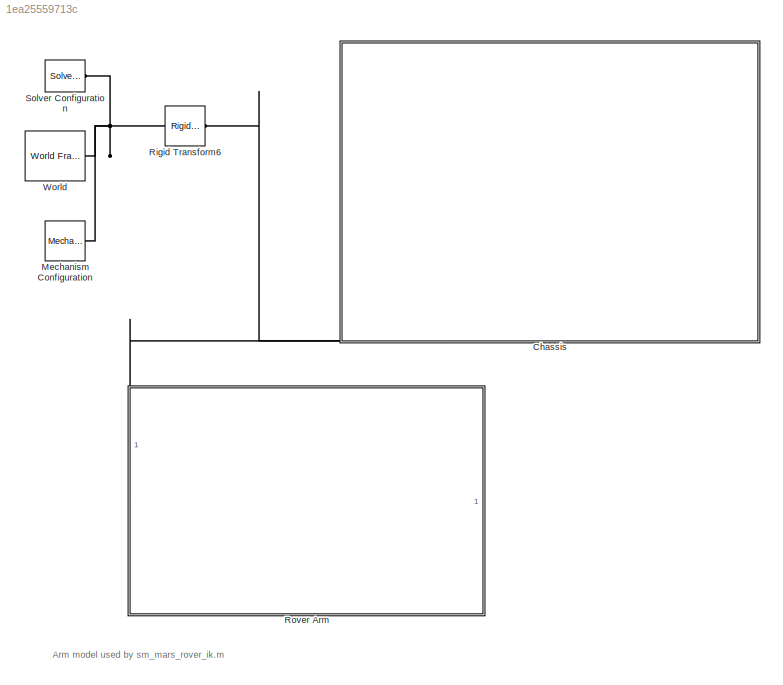
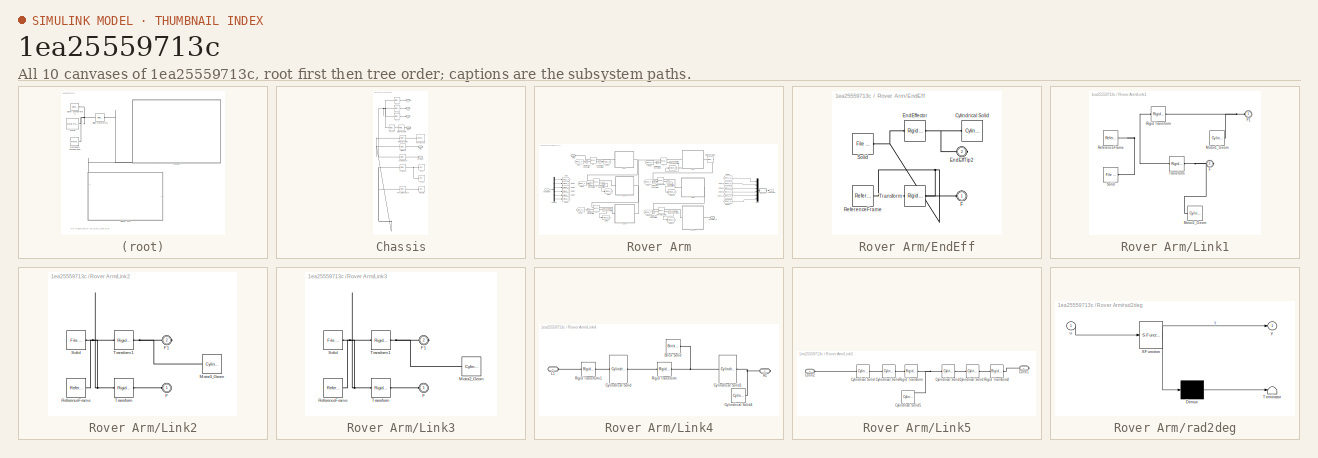
[diagram: thumbnail index - all 10 canvases of the model, root first then tree order]
MODEL slx_1ea25559713c
KIND model
CONFIG AbsTol = 1e-3
CONFIG EnableMultiTasking = on
CONFIG FixedStep = 1e-4
CONFIG MaxStep = 0.1
CONFIG MinStep = auto
CONFIG RelTol = 1e-3
CONFIG SampleTimeConstraint = Unconstrained
CONFIG SolverName = ode15s
CONFIG StartTime = 0.0
CONFIG StopTime = 83
WORKSPACE source: MATLAB code (in-file)
WORKSPACE currentDir = pwd
WORKSPACE code: if contains(pwd,'sm_mars_rover_data')
WORKSPACE code: run( 'rover_params') ;
WORKSPACE code: run('rover_arm_params');
WORKSPACE code: run('rover_camera_params') ;
WORKSPACE code: else
WORKSPACE code: run(['sm_mars_rover_data',filesep,'rover_params']) ;
WORKSPACE code: run(['sm_mars_rover_data',filesep,'rover_arm_params']);
WORKSPACE code: run(['sm_mars_rover_data',filesep,'rover_camera_params']) ;
WORKSPACE code: end
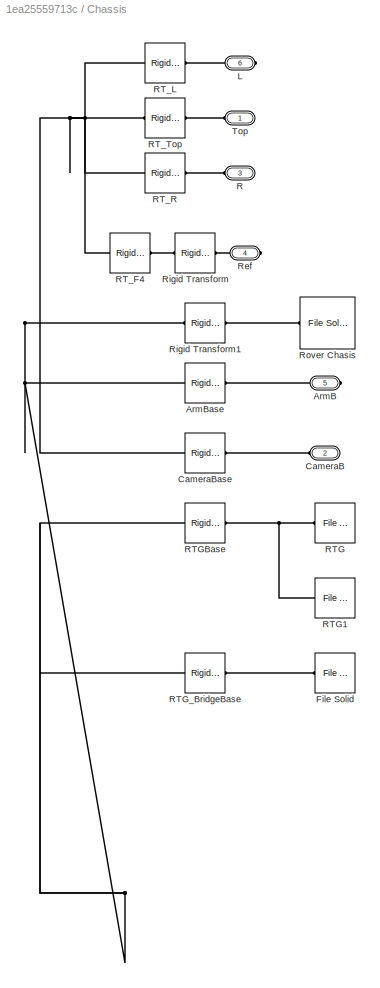
BLOCK [SubSystem] Chassis
  PortSchema = {"entries":[{"content":{"sides":[{"content":{"connectorIds":["LConn1"]},"type":"ConnectorPlacement.EquallySpacedRectSide","uuid":"0997d4f9-c5a6-4a62-ba5e-c58d48ce04e3"},{"content":{"connectorIds":[],"side":"RIGHT"},"type":"ConnectorPlacement.EquallySpacedRectSide","uuid":"5cc65ecf-81a6-4fc9-b54f-1f4b62f39cde"},{"content":{"connectorIds":["LConn2","LConn3"],"side":"TOP"},"type":"ConnectorPlacement....<+424ch>
  Ports = [0, 0, 0, 0, 0, 3, 3]
  RequestExecContextInheritance = off
BLOCK [PMIOPort] Chassis/ArmB
  Port = 5
  Side = Right
BLOCK [Reference] Chassis/ArmBase  REF=sm_lib/Frames and
Transforms/Rigid
Transform
  Ports = [0, 0, 0, 0, 0, 1, 1]
  SourceBlock = sm_lib/Frames and\nTransforms/Rigid\nTransform
  SourceProductBaseCode = MS
  SourceType = Rigid\nTransform
BLOCK [PMIOPort] Chassis/CameraB
  Port = 2
  Side = Left
BLOCK [Reference] Chassis/CameraBase  REF=sm_lib/Frames and
Transforms/Rigid
Transform
  Ports = [0, 0, 0, 0, 0, 1, 1]
  SourceBlock = sm_lib/Frames and\nTransforms/Rigid\nTransform
  SourceProductBaseCode = MS
  SourceType = Rigid\nTransform
BLOCK [Reference] Chassis/File Solid  REF=sm_lib/Body Elements/File Solid
  NameLocation = top
  Ports = [0, 0, 0, 0, 0, 0, 1]
  SourceBlock = sm_lib/Body Elements/File Solid
  SourceProductBaseCode = MS
  SourceType = File Solid
BLOCK [PMIOPort] Chassis/L
  Port = 6
  Side = Right
BLOCK [PMIOPort] Chassis/R
  Port = 3
  Side = Left
BLOCK [Reference] Chassis/RTG  REF=sm_lib/Body Elements/File Solid
  Ports = [0, 0, 0, 0, 0, 0, 1]
  SourceBlock = sm_lib/Body Elements/File Solid
  SourceProductBaseCode = MS
  SourceType = File Solid
BLOCK [Reference] Chassis/RTG1  REF=sm_lib/Body Elements/File Solid
  Ports = [0, 0, 0, 0, 0, 0, 1]
  SourceBlock = sm_lib/Body Elements/File Solid
  SourceProductBaseCode = MS
  SourceType = File Solid
BLOCK [Reference] Chassis/RTGBase  REF=sm_lib/Frames and
Transforms/Rigid
Transform
  Ports = [0, 0, 0, 0, 0, 1, 1]
  SourceBlock = sm_lib/Frames and\nTransforms/Rigid\nTransform
  SourceProductBaseCode = MS
  SourceType = Rigid\nTransform
BLOCK [Reference] Chassis/RTG_BridgeBase  REF=sm_lib/Frames and
Transforms/Rigid
Transform
  Ports = [0, 0, 0, 0, 0, 1, 1]
  SourceBlock = sm_lib/Frames and\nTransforms/Rigid\nTransform
  SourceProductBaseCode = MS
  SourceType = Rigid\nTransform
BLOCK [Reference] Chassis/RT_F4  REF=sm_lib/Frames and
Transforms/Rigid
Transform
  Ports = [0, 0, 0, 0, 0, 1, 1]
  SourceBlock = sm_lib/Frames and\nTransforms/Rigid\nTransform
  SourceProductBaseCode = MS
  SourceType = Rigid\nTransform
BLOCK [Reference] Chassis/RT_L  REF=sm_lib/Frames and
Transforms/Rigid
Transform
  Ports = [0, 0, 0, 0, 0, 1, 1]
  SourceBlock = sm_lib/Frames and\nTransforms/Rigid\nTransform
  SourceProductBaseCode = MS
  SourceType = Rigid\nTransform
BLOCK [Reference] Chassis/RT_R  REF=sm_lib/Frames and
Transforms/Rigid
Transform
  Ports = [0, 0, 0, 0, 0, 1, 1]
  SourceBlock = sm_lib/Frames and\nTransforms/Rigid\nTransform
  SourceProductBaseCode = MS
  SourceType = Rigid\nTransform
BLOCK [Reference] Chassis/RT_Top  REF=sm_lib/Frames and
Transforms/Rigid
Transform
  Ports = [0, 0, 0, 0, 0, 1, 1]
  SourceBlock = sm_lib/Frames and\nTransforms/Rigid\nTransform
  SourceProductBaseCode = MS
  SourceType = Rigid\nTransform
BLOCK [PMIOPort] Chassis/Ref
  Port = 4
  Side = Right
BLOCK [Reference] Chassis/Rigid Transform  REF=sm_lib/Frames and
Transforms/Rigid
Transform
  Ports = [0, 0, 0, 0, 0, 1, 1]
  SourceBlock = sm_lib/Frames and\nTransforms/Rigid\nTransform
  SourceProductBaseCode = MS
  SourceType = Rigid\nTransform
BLOCK [Reference] Chassis/Rigid Transform1  REF=sm_lib/Frames and
Transforms/Rigid
Transform
  NameLocation = top
  Ports = [0, 0, 0, 0, 0, 1, 1]
  SourceBlock = sm_lib/Frames and\nTransforms/Rigid\nTransform
  SourceProductBaseCode = MS
  SourceType = Rigid\nTransform
BLOCK [Reference] Chassis/Rover Chasis  REF=sm_lib/Body Elements/File Solid
  Ports = [0, 0, 0, 0, 0, 1]
  SourceBlock = sm_lib/Body Elements/File Solid
  SourceProductBaseCode = MS
  SourceType = File Solid
BLOCK [PMIOPort] Chassis/Top
  Side = Left
BLOCK [Reference] Mechanism Configuration  REF=sm_lib/Utilities/Mechanism
Configuration
  Ports = [0, 0, 0, 0, 0, 0, 1]
  SourceBlock = sm_lib/Utilities/Mechanism\nConfiguration
  SourceProductBaseCode = MS
  SourceType = Mechanism\nConfiguration
BLOCK [Reference] Rigid Transform6  REF=sm_lib/Frames and
Transforms/Rigid
Transform
  Ports = [0, 0, 0, 0, 0, 1, 1]
  SourceBlock = sm_lib/Frames and\nTransforms/Rigid\nTransform
  SourceProductBaseCode = MS
  SourceType = Rigid\nTransform
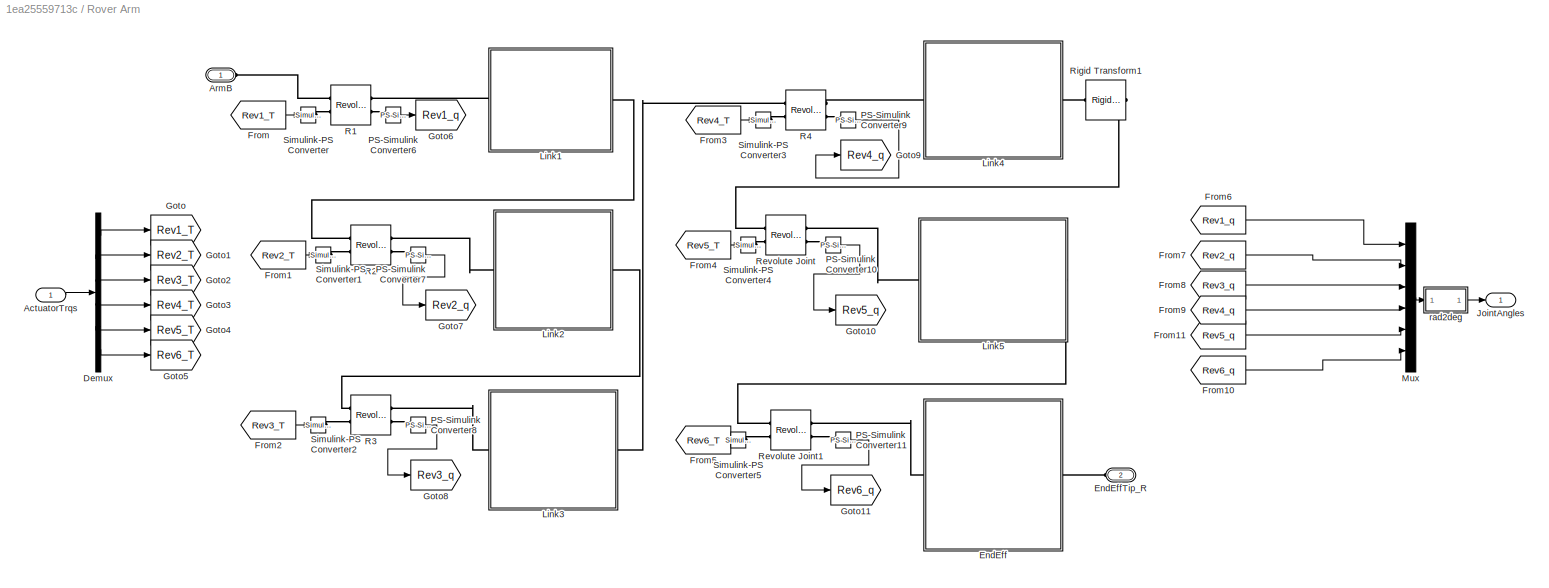
BLOCK [SubSystem] Rover Arm
  PortSchema = {"entries":[{"content":{"sides":[{"content":{"connectorIds":["In1"]},"type":"ConnectorPlacement.EquallySpacedRectSide","uuid":"44c8adb7-00ac-400a-98ed-ead5e12ad105"},{"content":{"connectorIds":["Out1"],"side":"RIGHT"},"type":"ConnectorPlacement.EquallySpacedRectSide","uuid":"fdc7bd8f-ace2-488d-8919-cf5c650dd1d7"},{"content":{"connectorIds":["LConn1","LConn2"],"side":"TOP"},"type":"ConnectorPlaceme...<+257ch>
  Ports = [1, 1, 0, 0, 0, 2]
  RequestExecContextInheritance = off
BLOCK [Inport] Rover Arm/ActuatorTrqs
BLOCK [PMIOPort] Rover Arm/ArmB
  Side = Left
BLOCK [Demux] Rover Arm/Demux
  Outputs = 6
  Ports = [1, 6]
BLOCK [SubSystem] Rover Arm/EndEff
  Ports = [0, 0, 0, 0, 0, 1, 1]
  RequestExecContextInheritance = off
BLOCK [Reference] Rover Arm/EndEff/Cylindrical Solid  REF=sm_lib/Body Elements/Cylindrical Solid
  NameLocation = top
  Ports = [0, 0, 0, 0, 0, 0, 1]
  SourceBlock = sm_lib/Body Elements/Cylindrical Solid
  SourceProductBaseCode = MS
  SourceType = Cylindrical Solid
BLOCK [PMIOPort] Rover Arm/EndEff/EndEffTip2
  Port = 2
  Side = Right
BLOCK [Reference] Rover Arm/EndEff/EndEffector  REF=sm_lib/Frames and
Transforms/Rigid
Transform
  Ports = [0, 0, 0, 0, 0, 1, 1]
  SourceBlock = sm_lib/Frames and\nTransforms/Rigid\nTransform
  SourceProductBaseCode = MS
  SourceType = Rigid\nTransform
BLOCK [PMIOPort] Rover Arm/EndEff/F
  Side = Left
BLOCK [Reference] Rover Arm/EndEff/ReferenceFrame  REF=sm_lib/Frames and
Transforms/Reference
Frame
  Ports = [0, 0, 0, 0, 0, 0, 1]
  SourceBlock = sm_lib/Frames and\nTransforms/Reference\nFrame
  SourceProductBaseCode = MS
  SourceType = Reference\nFrame
BLOCK [Reference] Rover Arm/EndEff/Solid  REF=sm_lib/Body Elements/File Solid
  Ports = [0, 0, 0, 0, 0, 0, 1]
  SourceBlock = sm_lib/Body Elements/File Solid
  SourceProductBaseCode = MS
  SourceType = File Solid
BLOCK [Reference] Rover Arm/EndEff/Transform  REF=sm_lib/Frames and
Transforms/Rigid
Transform
  Ports = [0, 0, 0, 0, 0, 1, 1]
  SourceBlock = sm_lib/Frames and\nTransforms/Rigid\nTransform
  SourceProductBaseCode = MS
  SourceType = Rigid\nTransform
BLOCK [PMIOPort] Rover Arm/EndEffTip_R
  Port = 2
  Side = Left
BLOCK [From] Rover Arm/From
  GotoTag = Rev1_T
BLOCK [From] Rover Arm/From1
  GotoTag = Rev2_T
BLOCK [From] Rover Arm/From10
  GotoTag = Rev6_q
BLOCK [From] Rover Arm/From11
  GotoTag = Rev5_q
BLOCK [From] Rover Arm/From2
  GotoTag = Rev3_T
BLOCK [From] Rover Arm/From3
  GotoTag = Rev4_T
BLOCK [From] Rover Arm/From4
  GotoTag = Rev5_T
BLOCK [From] Rover Arm/From5
  GotoTag = Rev6_T
BLOCK [From] Rover Arm/From6
  GotoTag = Rev1_q
BLOCK [From] Rover Arm/From7
  GotoTag = Rev2_q
BLOCK [From] Rover Arm/From8
  GotoTag = Rev3_q
BLOCK [From] Rover Arm/From9
  GotoTag = Rev4_q
BLOCK [Goto] Rover Arm/Goto
  GotoTag = Rev1_T
BLOCK [Goto] Rover Arm/Goto1
  GotoTag = Rev2_T
BLOCK [Goto] Rover Arm/Goto10
  GotoTag = Rev5_q
BLOCK [Goto] Rover Arm/Goto11
  GotoTag = Rev6_q
BLOCK [Goto] Rover Arm/Goto2
  GotoTag = Rev3_T
BLOCK [Goto] Rover Arm/Goto3
  GotoTag = Rev4_T
BLOCK [Goto] Rover Arm/Goto4
  GotoTag = Rev5_T
BLOCK [Goto] Rover Arm/Goto5
  GotoTag = Rev6_T
BLOCK [Goto] Rover Arm/Goto6
  GotoTag = Rev1_q
BLOCK [Goto] Rover Arm/Goto7
  GotoTag = Rev2_q
BLOCK [Goto] Rover Arm/Goto8
  GotoTag = Rev3_q
BLOCK [Goto] Rover Arm/Goto9
  GotoTag = Rev4_q
BLOCK [Outport] Rover Arm/JointAngles
BLOCK [SubSystem] Rover Arm/Link1
  Ports = [0, 0, 0, 0, 0, 1, 1]
  RequestExecContextInheritance = off
BLOCK [PMIOPort] Rover Arm/Link1/F
  Port = 2
  Side = Right
BLOCK [PMIOPort] Rover Arm/Link1/F1
  Side = Left
BLOCK [Reference] Rover Arm/Link1/Motor1_Geom  REF=sm_lib/Body Elements/Cylindrical Solid
  Ports = [0, 0, 0, 0, 0, 0, 1]
  SourceBlock = sm_lib/Body Elements/Cylindrical Solid
  SourceProductBaseCode = MS
  SourceType = Cylindrical Solid
BLOCK [Reference] Rover Arm/Link1/Motor2_Geom  REF=sm_lib/Body Elements/Cylindrical Solid
  Ports = [0, 0, 0, 0, 0, 1]
  SourceBlock = sm_lib/Body Elements/Cylindrical Solid
  SourceProductBaseCode = MS
  SourceType = Cylindrical Solid
BLOCK [Reference] Rover Arm/Link1/ReferenceFrame  REF=sm_lib/Frames and
Transforms/Reference
Frame
  Ports = [0, 0, 0, 0, 0, 0, 1]
  SourceBlock = sm_lib/Frames and\nTransforms/Reference\nFrame
  SourceProductBaseCode = MS
  SourceType = Reference\nFrame
BLOCK [Reference] Rover Arm/Link1/Rigid Transform  REF=sm_lib/Frames and
Transforms/Rigid
Transform
  Ports = [0, 0, 0, 0, 0, 1, 1]
  SourceBlock = sm_lib/Frames and\nTransforms/Rigid\nTransform
  SourceProductBaseCode = MS
  SourceType = Rigid\nTransform
BLOCK [Reference] Rover Arm/Link1/Solid  REF=sm_lib/Body Elements/File Solid
  Ports = [0, 0, 0, 0, 0, 0, 1]
  SourceBlock = sm_lib/Body Elements/File Solid
  SourceProductBaseCode = MS
  SourceType = File Solid
BLOCK [Reference] Rover Arm/Link1/Transform  REF=sm_lib/Frames and
Transforms/Rigid
Transform
  Ports = [0, 0, 0, 0, 0, 1, 1]
  SourceBlock = sm_lib/Frames and\nTransforms/Rigid\nTransform
  SourceProductBaseCode = MS
  SourceType = Rigid\nTransform
BLOCK [SubSystem] Rover Arm/Link2
  Ports = [0, 0, 0, 0, 0, 1, 1]
  RequestExecContextInheritance = off
BLOCK [PMIOPort] Rover Arm/Link2/F
  Side = Left
BLOCK [PMIOPort] Rover Arm/Link2/F1
  Port = 2
  Side = Right
BLOCK [Reference] Rover Arm/Link2/Motor3_Geom  REF=sm_lib/Body Elements/Cylindrical Solid
  Ports = [0, 0, 0, 0, 0, 1]
  SourceBlock = sm_lib/Body Elements/Cylindrical Solid
  SourceProductBaseCode = MS
  SourceType = Cylindrical Solid
BLOCK [Reference] Rover Arm/Link2/ReferenceFrame  REF=sm_lib/Frames and
Transforms/Reference
Frame
  Ports = [0, 0, 0, 0, 0, 0, 1]
  SourceBlock = sm_lib/Frames and\nTransforms/Reference\nFrame
  SourceProductBaseCode = MS
  SourceType = Reference\nFrame
BLOCK [Reference] Rover Arm/Link2/Solid  REF=sm_lib/Body Elements/File Solid
  Ports = [0, 0, 0, 0, 0, 0, 1]
  SourceBlock = sm_lib/Body Elements/File Solid
  SourceProductBaseCode = MS
  SourceType = File Solid
BLOCK [Reference] Rover Arm/Link2/Transform  REF=sm_lib/Frames and
Transforms/Rigid
Transform
  Ports = [0, 0, 0, 0, 0, 1, 1]
  SourceBlock = sm_lib/Frames and\nTransforms/Rigid\nTransform
  SourceProductBaseCode = MS
  SourceType = Rigid\nTransform
BLOCK [Reference] Rover Arm/Link2/Transform1  REF=sm_lib/Frames and
Transforms/Rigid
Transform
  Ports = [0, 0, 0, 0, 0, 1, 1]
  SourceBlock = sm_lib/Frames and\nTransforms/Rigid\nTransform
  SourceProductBaseCode = MS
  SourceType = Rigid\nTransform
BLOCK [SubSystem] Rover Arm/Link3
  Ports = [0, 0, 0, 0, 0, 1, 1]
  RequestExecContextInheritance = off
BLOCK [PMIOPort] Rover Arm/Link3/F
  Side = Left
BLOCK [PMIOPort] Rover Arm/Link3/F1
  Port = 2
  Side = Right
BLOCK [Reference] Rover Arm/Link3/Motor2_Geom  REF=sm_lib/Body Elements/Cylindrical Solid
  Ports = [0, 0, 0, 0, 0, 1]
  SourceBlock = sm_lib/Body Elements/Cylindrical Solid
  SourceProductBaseCode = MS
  SourceType = Cylindrical Solid
BLOCK [Reference] Rover Arm/Link3/ReferenceFrame  REF=sm_lib/Frames and
Transforms/Reference
Frame
  Ports = [0, 0, 0, 0, 0, 0, 1]
  SourceBlock = sm_lib/Frames and\nTransforms/Reference\nFrame
  SourceProductBaseCode = MS
  SourceType = Reference\nFrame
BLOCK [Reference] Rover Arm/Link3/Solid  REF=sm_lib/Body Elements/File Solid
  Ports = [0, 0, 0, 0, 0, 0, 1]
  SourceBlock = sm_lib/Body Elements/File Solid
  SourceProductBaseCode = MS
  SourceType = File Solid
BLOCK [Reference] Rover Arm/Link3/Transform  REF=sm_lib/Frames and
Transforms/Rigid
Transform
  Ports = [0, 0, 0, 0, 0, 1, 1]
  SourceBlock = sm_lib/Frames and\nTransforms/Rigid\nTransform
  SourceProductBaseCode = MS
  SourceType = Rigid\nTransform
BLOCK [Reference] Rover Arm/Link3/Transform1  REF=sm_lib/Frames and
Transforms/Rigid
Transform
  Ports = [0, 0, 0, 0, 0, 1, 1]
  SourceBlock = sm_lib/Frames and\nTransforms/Rigid\nTransform
  SourceProductBaseCode = MS
  SourceType = Rigid\nTransform
BLOCK [SubSystem] Rover Arm/Link4
  Ports = [0, 0, 0, 0, 0, 1, 1]
  RequestExecContextInheritance = off
BLOCK [Reference] Rover Arm/Link4/Brick Solid  REF=sm_lib/Body Elements/Brick Solid
  Ports = [0, 0, 0, 0, 0, 0, 1]
  SourceBlock = sm_lib/Body Elements/Brick Solid
  SourceProductBaseCode = MS
  SourceType = Brick Solid
BLOCK [Reference] Rover Arm/Link4/Cylindrical Solid  REF=sm_lib/Body Elements/Cylindrical Solid
  Ports = [0, 0, 0, 0, 0, 1, 1]
  SourceBlock = sm_lib/Body Elements/Cylindrical Solid
  SourceProductBaseCode = MS
  SourceType = Cylindrical Solid
BLOCK [Reference] Rover Arm/Link4/Cylindrical Solid1  REF=sm_lib/Body Elements/Cylindrical Solid
  NameLocation = top
  Ports = [0, 0, 0, 0, 0, 1, 1]
  SourceBlock = sm_lib/Body Elements/Cylindrical Solid
  SourceProductBaseCode = MS
  SourceType = Cylindrical Solid
BLOCK [Reference] Rover Arm/Link4/Cylindrical Solid4  REF=sm_lib/Body Elements/Cylindrical Solid
  Ports = [0, 0, 0, 0, 0, 0, 1]
  SourceBlock = sm_lib/Body Elements/Cylindrical Solid
  SourceProductBaseCode = MS
  SourceType = Cylindrical Solid
BLOCK [PMIOPort] Rover Arm/Link4/L1
  Side = Left
BLOCK [PMIOPort] Rover Arm/Link4/R1
  Port = 2
  Side = Right
BLOCK [Reference] Rover Arm/Link4/Rigid Transform  REF=sm_lib/Frames and
Transforms/Rigid
Transform
  Ports = [0, 0, 0, 0, 0, 1, 1]
  SourceBlock = sm_lib/Frames and\nTransforms/Rigid\nTransform
  SourceProductBaseCode = MS
  SourceType = Rigid\nTransform
BLOCK [Reference] Rover Arm/Link4/Rigid Transform1  REF=sm_lib/Frames and
Transforms/Rigid
Transform
  Ports = [0, 0, 0, 0, 0, 1, 1]
  SourceBlock = sm_lib/Frames and\nTransforms/Rigid\nTransform
  SourceProductBaseCode = MS
  SourceType = Rigid\nTransform
BLOCK [SubSystem] Rover Arm/Link5
  Ports = [0, 0, 0, 0, 0, 1, 1]
  RequestExecContextInheritance = off
BLOCK [PMIOPort] Rover Arm/Link5/Conn1
  Side = Right
BLOCK [PMIOPort] Rover Arm/Link5/Conn2
  Port = 2
  Side = Left
BLOCK [Reference] Rover Arm/Link5/Cylindrical Solid  REF=sm_lib/Body Elements/Cylindrical Solid
  Ports = [0, 0, 0, 0, 0, 1, 1]
  SourceBlock = sm_lib/Body Elements/Cylindrical Solid
  SourceProductBaseCode = MS
  SourceType = Cylindrical Solid
BLOCK [Reference] Rover Arm/Link5/Cylindrical Solid1  REF=sm_lib/Body Elements/Cylindrical Solid
  Ports = [0, 0, 0, 0, 0, 1, 1]
  SourceBlock = sm_lib/Body Elements/Cylindrical Solid
  SourceProductBaseCode = MS
  SourceType = Cylindrical Solid
BLOCK [Reference] Rover Arm/Link5/Cylindrical Solid2  REF=sm_lib/Body Elements/Cylindrical Solid
  Ports = [0, 0, 0, 0, 0, 1, 1]
  SourceBlock = sm_lib/Body Elements/Cylindrical Solid
  SourceProductBaseCode = MS
  SourceType = Cylindrical Solid
BLOCK [Reference] Rover Arm/Link5/Cylindrical Solid3  REF=sm_lib/Body Elements/Cylindrical Solid
  Ports = [0, 0, 0, 0, 0, 1, 1]
  SourceBlock = sm_lib/Body Elements/Cylindrical Solid
  SourceProductBaseCode = MS
  SourceType = Cylindrical Solid
BLOCK [Reference] Rover Arm/Link5/Cylindrical Solid5  REF=sm_lib/Body Elements/Cylindrical Solid
  NameLocation = left
  Ports = [0, 0, 0, 0, 0, 1]
  SourceBlock = sm_lib/Body Elements/Cylindrical Solid
  SourceProductBaseCode = MS
  SourceType = Cylindrical Solid
BLOCK [Reference] Rover Arm/Link5/Rigid Transform  REF=sm_lib/Frames and
Transforms/Rigid
Transform
  Ports = [0, 0, 0, 0, 0, 1, 1]
  SourceBlock = sm_lib/Frames and\nTransforms/Rigid\nTransform
  SourceProductBaseCode = MS
  SourceType = Rigid\nTransform
BLOCK [Reference] Rover Arm/Link5/Rigid Transform2  REF=sm_lib/Frames and
Transforms/Rigid
Transform
  Ports = [0, 0, 0, 0, 0, 1, 1]
  SourceBlock = sm_lib/Frames and\nTransforms/Rigid\nTransform
  SourceProductBaseCode = MS
  SourceType = Rigid\nTransform
BLOCK [Mux] Rover Arm/Mux
  DisplayOption = bar
  Inputs = 6
  Ports = [6, 1]
BLOCK [Reference] Rover Arm/PS-Simulink Converter10  REF=nesl_utility/PS-Simulink
Converter
  Ports = [0, 1, 0, 0, 0, 1]
  SourceBlock = nesl_utility/PS-Simulink\nConverter
  SourceProductBaseCode = PW,SS
  SourceType = PS-Simulink\nConverter
BLOCK [Reference] Rover Arm/PS-Simulink Converter11  REF=nesl_utility/PS-Simulink
Converter
  Ports = [0, 1, 0, 0, 0, 1]
  SourceBlock = nesl_utility/PS-Simulink\nConverter
  SourceProductBaseCode = PW,SS
  SourceType = PS-Simulink\nConverter
BLOCK [Reference] Rover Arm/PS-Simulink Converter6  REF=nesl_utility/PS-Simulink
Converter
  Ports = [0, 1, 0, 0, 0, 1]
  SourceBlock = nesl_utility/PS-Simulink\nConverter
  SourceProductBaseCode = PW,SS
  SourceType = PS-Simulink\nConverter
BLOCK [Reference] Rover Arm/PS-Simulink Converter7  REF=nesl_utility/PS-Simulink
Converter
  Ports = [0, 1, 0, 0, 0, 1]
  SourceBlock = nesl_utility/PS-Simulink\nConverter
  SourceProductBaseCode = PW,SS
  SourceType = PS-Simulink\nConverter
BLOCK [Reference] Rover Arm/PS-Simulink Converter8  REF=nesl_utility/PS-Simulink
Converter
  Ports = [0, 1, 0, 0, 0, 1]
  SourceBlock = nesl_utility/PS-Simulink\nConverter
  SourceProductBaseCode = PW,SS
  SourceType = PS-Simulink\nConverter
BLOCK [Reference] Rover Arm/PS-Simulink Converter9  REF=nesl_utility/PS-Simulink
Converter
  Ports = [0, 1, 0, 0, 0, 1]
  SourceBlock = nesl_utility/PS-Simulink\nConverter
  SourceProductBaseCode = PW,SS
  SourceType = PS-Simulink\nConverter
BLOCK [Reference] Rover Arm/R1  REF=sm_lib/Joints/Revolute Joint
  Ports = [0, 0, 0, 0, 0, 2, 2]
  SourceBlock = sm_lib/Joints/Revolute Joint
  SourceProductBaseCode = MS
  SourceType = Revolute Joint
BLOCK [Reference] Rover Arm/R2  REF=sm_lib/Joints/Revolute Joint
  Ports = [0, 0, 0, 0, 0, 2, 2]
  SourceBlock = sm_lib/Joints/Revolute Joint
  SourceProductBaseCode = MS
  SourceType = Revolute Joint
BLOCK [Reference] Rover Arm/R3  REF=sm_lib/Joints/Revolute Joint
  Ports = [0, 0, 0, 0, 0, 2, 2]
  SourceBlock = sm_lib/Joints/Revolute Joint
  SourceProductBaseCode = MS
  SourceType = Revolute Joint
BLOCK [Reference] Rover Arm/R4  REF=sm_lib/Joints/Revolute Joint
  Ports = [0, 0, 0, 0, 0, 2, 2]
  SourceBlock = sm_lib/Joints/Revolute Joint
  SourceProductBaseCode = MS
  SourceType = Revolute Joint
BLOCK [Reference] Rover Arm/Revolute Joint  REF=sm_lib/Joints/Revolute Joint
  Ports = [0, 0, 0, 0, 0, 2, 2]
  SourceBlock = sm_lib/Joints/Revolute Joint
  SourceProductBaseCode = MS
  SourceType = Revolute Joint
BLOCK [Reference] Rover Arm/Revolute Joint1  REF=sm_lib/Joints/Revolute Joint
  Ports = [0, 0, 0, 0, 0, 2, 2]
  SourceBlock = sm_lib/Joints/Revolute Joint
  SourceProductBaseCode = MS
  SourceType = Revolute Joint
BLOCK [Reference] Rover Arm/Rigid Transform1  REF=sm_lib/Frames and
Transforms/Rigid
Transform
  Ports = [0, 0, 0, 0, 0, 1, 1]
  SourceBlock = sm_lib/Frames and\nTransforms/Rigid\nTransform
  SourceProductBaseCode = MS
  SourceType = Rigid\nTransform
BLOCK [Reference] Rover Arm/Simulink-PS Converter  REF=nesl_utility/Simulink-PS
Converter
  Ports = [1, 0, 0, 0, 0, 0, 1]
  SourceBlock = nesl_utility/Simulink-PS\nConverter
  SourceProductBaseCode = PW,SS
  SourceType = Simulink-PS\nConverter
BLOCK [Reference] Rover Arm/Simulink-PS Converter1  REF=nesl_utility/Simulink-PS
Converter
  Ports = [1, 0, 0, 0, 0, 0, 1]
  SourceBlock = nesl_utility/Simulink-PS\nConverter
  SourceProductBaseCode = PW,SS
  SourceType = Simulink-PS\nConverter
BLOCK [Reference] Rover Arm/Simulink-PS Converter2  REF=nesl_utility/Simulink-PS
Converter
  Ports = [1, 0, 0, 0, 0, 0, 1]
  SourceBlock = nesl_utility/Simulink-PS\nConverter
  SourceProductBaseCode = PW,SS
  SourceType = Simulink-PS\nConverter
BLOCK [Reference] Rover Arm/Simulink-PS Converter3  REF=nesl_utility/Simulink-PS
Converter
  Ports = [1, 0, 0, 0, 0, 0, 1]
  SourceBlock = nesl_utility/Simulink-PS\nConverter
  SourceProductBaseCode = PW,SS
  SourceType = Simulink-PS\nConverter
BLOCK [Reference] Rover Arm/Simulink-PS Converter4  REF=nesl_utility/Simulink-PS
Converter
  Ports = [1, 0, 0, 0, 0, 0, 1]
  SourceBlock = nesl_utility/Simulink-PS\nConverter
  SourceProductBaseCode = PW,SS
  SourceType = Simulink-PS\nConverter
BLOCK [Reference] Rover Arm/Simulink-PS Converter5  REF=nesl_utility/Simulink-PS
Converter
  Ports = [1, 0, 0, 0, 0, 0, 1]
  SourceBlock = nesl_utility/Simulink-PS\nConverter
  SourceProductBaseCode = PW,SS
  SourceType = Simulink-PS\nConverter
BLOCK [SubSystem] Rover Arm/rad2deg
  ErrorFcn = Stateflow.Translate.translate
  PermitHierarchicalResolution = ExplicitOnly
  Ports = [1, 1]
  RequestExecContextInheritance = off
  SFBlockType = MATLAB Function
  TreatAsAtomicUnit = on
BLOCK [Demux] Rover Arm/rad2deg/ Demux 
  Outputs = 1
  Ports = [1, 1]
BLOCK [S-Function] Rover Arm/rad2deg/ SFunction 
  EnableBusSupport = on
  FunctionName = sf_sfun
  PortCounts = [1 2]
  Ports = [1, 2]
  SFcnIsStateOwnerBlock = off
  SFunctionDeploymentMode = off
  Tag = Stateflow S-Function 5
BLOCK [Terminator] Rover Arm/rad2deg/ Terminator 
BLOCK [Inport] Rover Arm/rad2deg/u
BLOCK [Outport] Rover Arm/rad2deg/y
BLOCK [Reference] Solver Configuration  REF=nesl_utility/Solver
Configuration
  Ports = [0, 0, 0, 0, 0, 0, 1]
  SourceBlock = nesl_utility/Solver\nConfiguration
  SourceProductBaseCode = PW,SS
  SourceType = Solver\nConfiguration
BLOCK [Reference] World  REF=sm_lib/Frames and
Transforms/World Frame
  Ports = [0, 0, 0, 0, 0, 0, 1]
  SourceBlock = sm_lib/Frames and\nTransforms/World Frame
  SourceProductBaseCode = MS
  SourceType = World Frame
ANNOTATION (root): Arm model used by sm_mars_rover_ik.m
LINE Rover Arm/ActuatorTrqs:1 -> Rover Arm/Demux:1
LINE Rover Arm/Demux:1 -> Rover Arm/Goto:1
LINE Rover Arm/Demux:2 -> Rover Arm/Goto1:1
LINE Rover Arm/Demux:3 -> Rover Arm/Goto2:1
LINE Rover Arm/Demux:4 -> Rover Arm/Goto3:1
LINE Rover Arm/Demux:5 -> Rover Arm/Goto4:1
LINE Rover Arm/Demux:6 -> Rover Arm/Goto5:1
LINE Rover Arm/From10:1 -> Rover Arm/Mux:6
LINE Rover Arm/From11:1 -> Rover Arm/Mux:5
LINE Rover Arm/From1:1 -> Rover Arm/Simulink-PS Converter1:1
LINE Rover Arm/From2:1 -> Rover Arm/Simulink-PS Converter2:1
LINE Rover Arm/From3:1 -> Rover Arm/Simulink-PS Converter3:1
LINE Rover Arm/From4:1 -> Rover Arm/Simulink-PS Converter4:1
LINE Rover Arm/From5:1 -> Rover Arm/Simulink-PS Converter5:1
LINE Rover Arm/From6:1 -> Rover Arm/Mux:1
LINE Rover Arm/From7:1 -> Rover Arm/Mux:2
LINE Rover Arm/From8:1 -> Rover Arm/Mux:3
LINE Rover Arm/From9:1 -> Rover Arm/Mux:4
LINE Rover Arm/From:1 -> Rover Arm/Simulink-PS Converter:1
LINE Rover Arm/Mux:1 -> Rover Arm/rad2deg:1
LINE Rover Arm/PS-Simulink Converter10:1 -> Rover Arm/Goto10:1
LINE Rover Arm/PS-Simulink Converter11:1 -> Rover Arm/Goto11:1
LINE Rover Arm/PS-Simulink Converter6:1 -> Rover Arm/Goto6:1
LINE Rover Arm/PS-Simulink Converter7:1 -> Rover Arm/Goto7:1
LINE Rover Arm/PS-Simulink Converter8:1 -> Rover Arm/Goto8:1
LINE Rover Arm/PS-Simulink Converter9:1 -> Rover Arm/Goto9:1
LINE Rover Arm/rad2deg:1 -> Rover Arm/JointAngles:1
PLINE Chassis/ArmB:RConn1 -- Chassis/ArmBase:RConn1
PNET net1: Chassis/ArmBase:LConn1 -- Chassis/CameraBase:LConn1 -- Chassis/RTGBase:LConn1 -- Chassis/RTG_BridgeBase:LConn1 -- Chassis/RT_F4:LConn1 -- Chassis/RT_L:LConn1 -- Chassis/RT_R:LConn1 -- Chassis/RT_Top:LConn1 -- Chassis/Rigid Transform1:RConn1
PLINE Chassis/CameraB:RConn1 -- Chassis/CameraBase:RConn1
PLINE Chassis/File Solid:RConn1 -- Chassis/RTG_BridgeBase:RConn1
PLINE Chassis/L:RConn1 -- Chassis/RT_L:RConn1
PLINE Chassis/R:RConn1 -- Chassis/RT_R:RConn1
PNET net2: Chassis/RTG1:RConn1 -- Chassis/RTG:RConn1 -- Chassis/RTGBase:RConn1
PLINE Chassis/RT_F4:RConn1 -- Chassis/Rigid Transform:LConn1
PLINE Chassis/RT_Top:RConn1 -- Chassis/Top:RConn1
PLINE Chassis/Ref:RConn1 -- Chassis/Rigid Transform:RConn1
PLINE Chassis/Rigid Transform1:LConn1 -- Chassis/Rover Chasis:LConn1
PLINE Chassis:RConn1 -- Rigid Transform6:RConn1
PLINE Chassis:RConn2 -- Rover Arm:LConn1
PNET net3: Mechanism Configuration:RConn1 -- Rigid Transform6:LConn1 -- Solver Configuration:RConn1 -- World:RConn1
PLINE Rover Arm/ArmB:RConn1 -- Rover Arm/R1:LConn1
PNET net4: Rover Arm/EndEff/Cylindrical Solid:RConn1 -- Rover Arm/EndEff/EndEffTip2:RConn1 -- Rover Arm/EndEff/EndEffector:RConn1
PNET net5: Rover Arm/EndEff/EndEffector:LConn1 -- Rover Arm/EndEff/ReferenceFrame:RConn1 -- Rover Arm/EndEff/Solid:RConn1 -- Rover Arm/EndEff/Transform:LConn1
PLINE Rover Arm/EndEff/F:RConn1 -- Rover Arm/EndEff/Transform:RConn1
PLINE Rover Arm/EndEff:LConn1 -- Rover Arm/Revolute Joint1:RConn1
PLINE Rover Arm/EndEff:RConn1 -- Rover Arm/EndEffTip_R:RConn1
PNET net6: Rover Arm/Link1/F1:RConn1 -- Rover Arm/Link1/Motor1_Geom:RConn1 -- Rover Arm/Link1/Rigid Transform:RConn1
PNET net7: Rover Arm/Link1/F:RConn1 -- Rover Arm/Link1/Motor2_Geom:LConn1 -- Rover Arm/Link1/Transform:RConn1
PNET net8: Rover Arm/Link1/ReferenceFrame:RConn1 -- Rover Arm/Link1/Rigid Transform:LConn1 -- Rover Arm/Link1/Solid:RConn1 -- Rover Arm/Link1/Transform:LConn1
PLINE Rover Arm/Link1:LConn1 -- Rover Arm/R1:RConn1
PLINE Rover Arm/Link1:RConn1 -- Rover Arm/R2:LConn1
PNET net9: Rover Arm/Link2/F1:RConn1 -- Rover Arm/Link2/Motor3_Geom:LConn1 -- Rover Arm/Link2/Transform1:RConn1
PLINE Rover Arm/Link2/F:RConn1 -- Rover Arm/Link2/Transform:RConn1
PNET net10: Rover Arm/Link2/ReferenceFrame:RConn1 -- Rover Arm/Link2/Solid:RConn1 -- Rover Arm/Link2/Transform1:LConn1 -- Rover Arm/Link2/Transform:LConn1
PLINE Rover Arm/Link2:LConn1 -- Rover Arm/R2:RConn1
PLINE Rover Arm/Link2:RConn1 -- Rover Arm/R3:LConn1
PNET net11: Rover Arm/Link3/F1:RConn1 -- Rover Arm/Link3/Motor2_Geom:LConn1 -- Rover Arm/Link3/Transform1:RConn1
PLINE Rover Arm/Link3/F:RConn1 -- Rover Arm/Link3/Transform:RConn1
PNET net12: Rover Arm/Link3/ReferenceFrame:RConn1 -- Rover Arm/Link3/Solid:RConn1 -- Rover Arm/Link3/Transform1:LConn1 -- Rover Arm/Link3/Transform:LConn1
PLINE Rover Arm/Link3:LConn1 -- Rover Arm/R3:RConn1
PLINE Rover Arm/Link3:RConn1 -- Rover Arm/R4:LConn1
PNET net13: Rover Arm/Link4/Brick Solid:RConn1 -- Rover Arm/Link4/Cylindrical Solid1:RConn1 -- Rover Arm/Link4/Rigid Transform:RConn1
PNET net14: Rover Arm/Link4/Cylindrical Solid1:LConn1 -- Rover Arm/Link4/Cylindrical Solid4:RConn1 -- Rover Arm/Link4/R1:RConn1
PLINE Rover Arm/Link4/Cylindrical Solid:LConn1 -- Rover Arm/Link4/Rigid Transform1:RConn1
PLINE Rover Arm/Link4/Cylindrical Solid:RConn1 -- Rover Arm/Link4/Rigid Transform:LConn1
PLINE Rover Arm/Link4/L1:RConn1 -- Rover Arm/Link4/Rigid Transform1:LConn1
PLINE Rover Arm/Link4:LConn1 -- Rover Arm/R4:RConn1
PLINE Rover Arm/Link4:RConn1 -- Rover Arm/Rigid Transform1:LConn1
PLINE Rover Arm/Link5/Conn1:RConn1 -- Rover Arm/Link5/Rigid Transform2:RConn1
PLINE Rover Arm/Link5/Conn2:RConn1 -- Rover Arm/Link5/Cylindrical Solid:LConn1
PLINE Rover Arm/Link5/Cylindrical Solid1:LConn1 -- Rover Arm/Link5/Cylindrical Solid3:RConn1
PLINE Rover Arm/Link5/Cylindrical Solid1:RConn1 -- Rover Arm/Link5/Rigid Transform2:LConn1
PLINE Rover Arm/Link5/Cylindrical Solid2:LConn1 -- Rover Arm/Link5/Cylindrical Solid:RConn1
PLINE Rover Arm/Link5/Cylindrical Solid2:RConn1 -- Rover Arm/Link5/Rigid Transform:LConn1
PNET net15: Rover Arm/Link5/Cylindrical Solid3:LConn1 -- Rover Arm/Link5/Cylindrical Solid5:LConn1 -- Rover Arm/Link5/Rigid Transform:RConn1
PLINE Rover Arm/Link5:LConn1 -- Rover Arm/Revolute Joint:RConn1
PLINE Rover Arm/Link5:RConn1 -- Rover Arm/Revolute Joint1:LConn1
PLINE Rover Arm/PS-Simulink Converter10:LConn1 -- Rover Arm/Revolute Joint:RConn2
PLINE Rover Arm/PS-Simulink Converter11:LConn1 -- Rover Arm/Revolute Joint1:RConn2
PLINE Rover Arm/PS-Simulink Converter6:LConn1 -- Rover Arm/R1:RConn2
PLINE Rover Arm/PS-Simulink Converter7:LConn1 -- Rover Arm/R2:RConn2
PLINE Rover Arm/PS-Simulink Converter8:LConn1 -- Rover Arm/R3:RConn2
PLINE Rover Arm/PS-Simulink Converter9:LConn1 -- Rover Arm/R4:RConn2
PLINE Rover Arm/R1:LConn2 -- Rover Arm/Simulink-PS Converter:RConn1
PLINE Rover Arm/R2:LConn2 -- Rover Arm/Simulink-PS Converter1:RConn1
PLINE Rover Arm/R3:LConn2 -- Rover Arm/Simulink-PS Converter2:RConn1
PLINE Rover Arm/R4:LConn2 -- Rover Arm/Simulink-PS Converter3:RConn1
PLINE Rover Arm/Revolute Joint1:LConn2 -- Rover Arm/Simulink-PS Converter5:RConn1
PLINE Rover Arm/Revolute Joint:LConn1 -- Rover Arm/Rigid Transform1:RConn1
PLINE Rover Arm/Revolute Joint:LConn2 -- Rover Arm/Simulink-PS Converter4:RConn1
note: PNET lines group multi-terminal physical nets as a canonical sorted terminal list (undirected conserving connections); 2-terminal nets keep the pairwise PLINE form
CHART Rover Arm/rad2deg states=1 transitions=1
  STATE_LABEL 'eML_blk_kernel()'
  STATE_LABEL 'SCRIPT:\nfunction y = fcn(u)\n\ny = rad2deg(u);\n'
CHART  states=0 transitions=0
